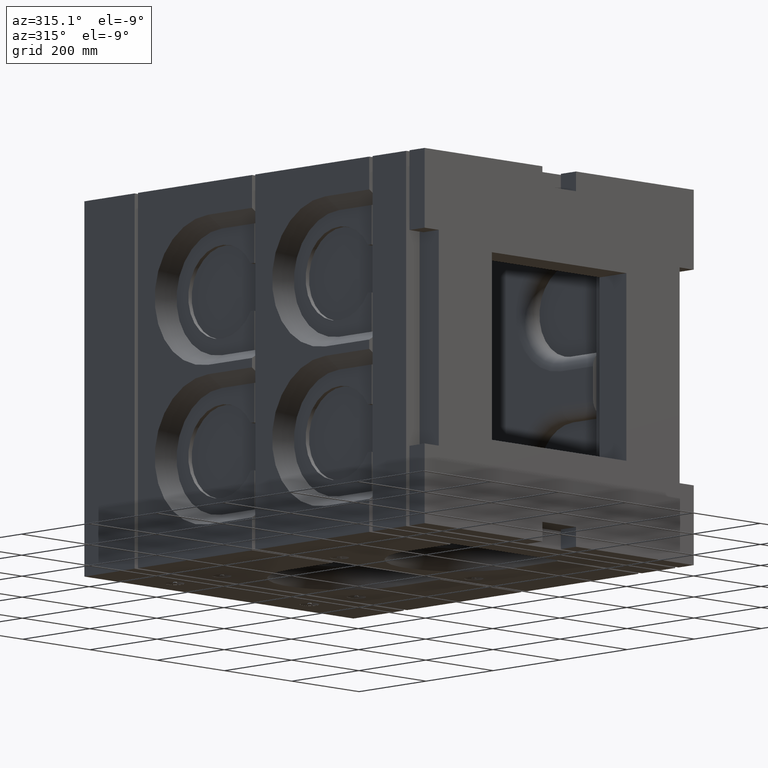
[diagram: clean part render]
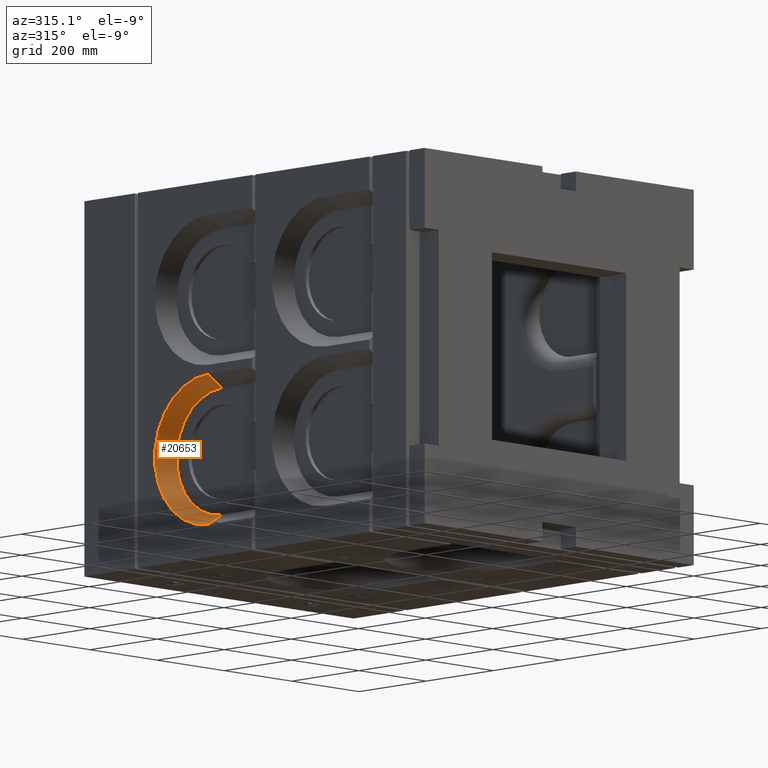
[diagram: same view with one face highlighted and labeled with its STEP entity id]
A machine part, auxiliary view. The second image highlights one B-rep face of the part: STEP entity #20653.
In plain terms, the highlighted conical surface has half-angle 32 deg.
Its self-contained STEP definition (entity closure, byte-faithful):
#184 = CARTESIAN_POINT ( 'NONE',  ( -400.0000000000000000, 644.9999999999998863, -330.0000000000000000 ) ) ;
#1619 = DIRECTION ( 'NONE',  ( -0.8480480961564252906, 9.192633880376989613E-17, -0.5299192642332060110 ) ) ;
#2016 = EDGE_CURVE ( 'NONE', #4254, #8449, #26222, .T. ) ;
#2366 = CARTESIAN_POINT ( 'NONE',  ( -360.0000000000000000, 644.9999999999998863, -169.9999999999999716 ) ) ;
#2512 = CARTESIAN_POINT ( 'NONE',  ( -360.0000000000000000, 644.9999999999998863, -34.99477407637319004 ) ) ;
#4060 = VERTEX_POINT ( 'NONE', #184 ) ;
#4254 = VERTEX_POINT ( 'NONE', #2512 ) ;
#4411 = EDGE_CURVE ( 'NONE', #19891, #4060, #7797, .T. ) ;
#4852 = CIRCLE ( 'NONE', #9541, 160.0000000000000000 ) ;
#5260 = DIRECTION ( 'NONE',  ( -1.000000000000000000, 0.0000000000000000000, 0.0000000000000000000 ) ) ;
#5778 = ORIENTED_EDGE ( 'NONE', *, *, #2016, .T. ) ;
#7797 = LINE ( 'NONE', #11664, #8400 ) ;
#7851 = DIRECTION ( 'NONE',  ( 0.0000000000000000000, 0.0000000000000000000, 1.000000000000000000 ) ) ;
#8400 = VECTOR ( 'NONE', #1619, 1000.000000000000114 ) ;
#8449 = VERTEX_POINT ( 'NONE', #18116 ) ;
#9541 = AXIS2_PLACEMENT_3D ( 'NONE', #17682, #19767, #23843 ) ;
#9874 = ORIENTED_EDGE ( 'NONE', *, *, #18199, .F. ) ;
#10052 = AXIS2_PLACEMENT_3D ( 'NONE', #12663, #20575, #14555 ) ;
#10237 = EDGE_LOOP ( 'NONE', ( #13456, #18019, #9874, #5778 ) ) ;
#11017 = CARTESIAN_POINT ( 'NONE',  ( -360.0000000000000000, 644.9999999999998863, -305.0052259236268242 ) ) ;
#11196 = CIRCLE ( 'NONE', #25749, 135.0052259236268242 ) ;
#11488 = CONICAL_SURFACE ( 'NONE', #10052, 160.0000000000000000, 0.5585053606381866764 ) ;
#11664 = CARTESIAN_POINT ( 'NONE',  ( -400.0000000000000000, 644.9999999999998863, -330.0000000000000000 ) ) ;
#12663 = CARTESIAN_POINT ( 'NONE',  ( -400.0000000000000000, 644.9999999999998863, -169.9999999999999716 ) ) ;
#13456 = ORIENTED_EDGE ( 'NONE', *, *, #20633, .T. ) ;
#14555 = DIRECTION ( 'NONE',  ( 0.0000000000000000000, 0.0000000000000000000, 1.000000000000000000 ) ) ;
#17201 = CARTESIAN_POINT ( 'NONE',  ( -400.0000000000000000, 644.9999999999998863, -10.00000000000000888 ) ) ;
#17682 = CARTESIAN_POINT ( 'NONE',  ( -400.0000000000000000, 644.9999999999998863, -169.9999999999999716 ) ) ;
#18019 = ORIENTED_EDGE ( 'NONE', *, *, #4411, .F. ) ;
#18116 = CARTESIAN_POINT ( 'NONE',  ( -400.0000000000000000, 644.9999999999998863, -9.999999999999953815 ) ) ;
#18199 = EDGE_CURVE ( 'NONE', #4254, #19891, #11196, .T. ) ;
#19022 = DIRECTION ( 'NONE',  ( -0.8480480961564252906, 1.176657136688255025E-16, 0.5299192642332060110 ) ) ;
#19767 = DIRECTION ( 'NONE',  ( -1.000000000000000000, 0.0000000000000000000, 0.0000000000000000000 ) ) ;
#19891 = VERTEX_POINT ( 'NONE', #11017 ) ;
#20575 = DIRECTION ( 'NONE',  ( -1.000000000000000000, -0.0000000000000000000, 0.0000000000000000000 ) ) ;
#20633 = EDGE_CURVE ( 'NONE', #8449, #4060, #4852, .T. ) ;
#20653 = ADVANCED_FACE ( 'NONE', ( #21984 ), #11488, .F. ) ;
#21984 = FACE_OUTER_BOUND ( 'NONE', #10237, .T. ) ;
#23402 = VECTOR ( 'NONE', #19022, 1000.000000000000114 ) ;
#23843 = DIRECTION ( 'NONE',  ( 0.0000000000000000000, 0.0000000000000000000, 1.000000000000000000 ) ) ;
#25749 = AXIS2_PLACEMENT_3D ( 'NONE', #2366, #5260, #7851 ) ;
#26222 = LINE ( 'NONE', #17201, #23402 ) ;